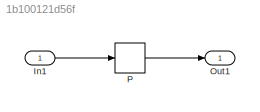
MODEL slx_1b100121d56f
KIND model
CONFIG AbsTol = auto
CONFIG EnableMultiTasking = off
CONFIG FixedStep = auto
CONFIG MaxStep = auto
CONFIG MinStep = auto
CONFIG RelTol = 1e-3
CONFIG SampleTimeConstraint = Unconstrained
CONFIG Solver = FixedStepDiscrete
CONFIG SolverName = FixedStepDiscrete
CONFIG StartTime = 0.0
CONFIG StopTime = 10.0
BLOCK [Inport] In1
  IconDisplay = Port number
  OutDataTypeStr = single
  PortDimensions = 1
BLOCK [Outport] Out1
  IconDisplay = Port number
BLOCK [Lookup_n-D] P
  BreakpointsForDimension1 = [1.03004831922773;4.44887486440572;69.3976170839048;70.5859270343582;99.9852937413939]
  BreakpointsForDimension1DataTypeStr = Inherit: Inherit from 'Breakpoint data'
  BreakpointsForDimension3 = [5, 7]
  ExtrapMethod = Clip
  FractionDataTypeStr = single
  InternalRulePriority = Speed
  NumberOfTableDimensions = 1
  OutDataTypeStr = uint8
  Ports = [1, 1]
  RndMeth = Simplest
  SaturateOnIntegerOverflow = on
  Table = [4.70356913872786;22.7911128939096;15.0302771331322;87.9907437542976;91.967113040571]
  UseOneInputPortForAllInputData = on
LINE In1:1 -> P:1
LINE P:1 -> Out1:1
